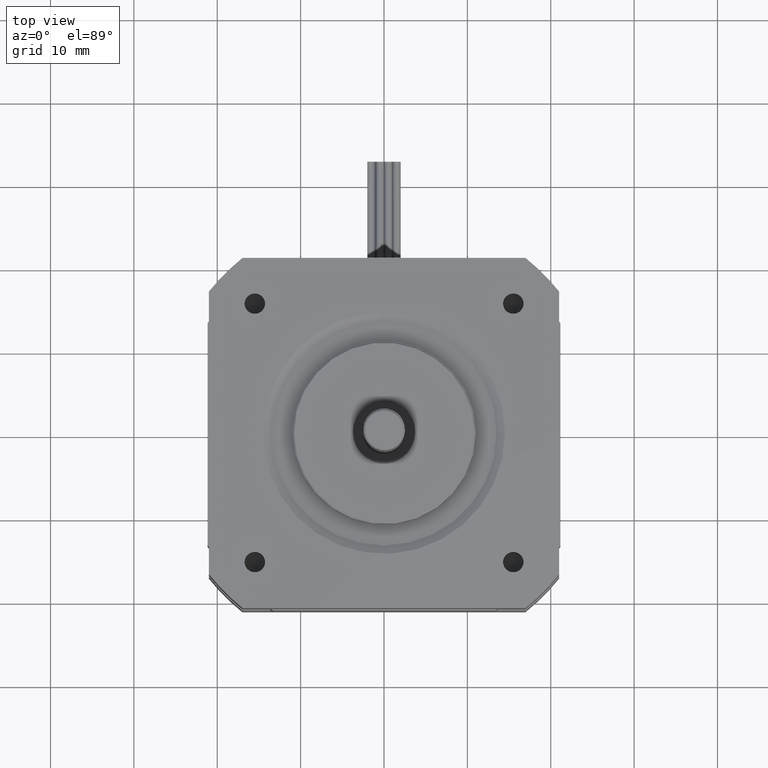
[diagram: clean part render]
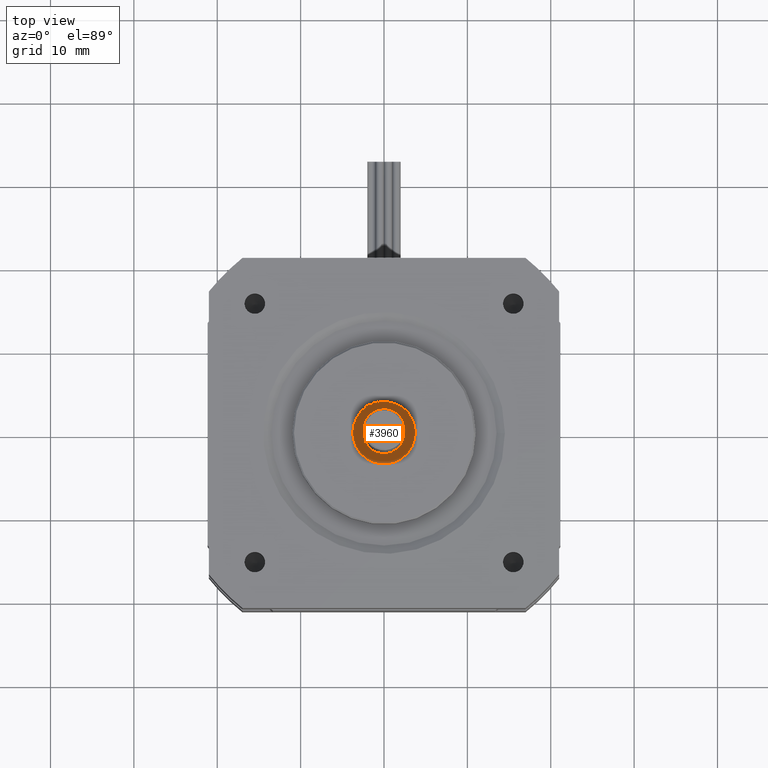
[diagram: same view with one face highlighted and labeled with its STEP entity id]
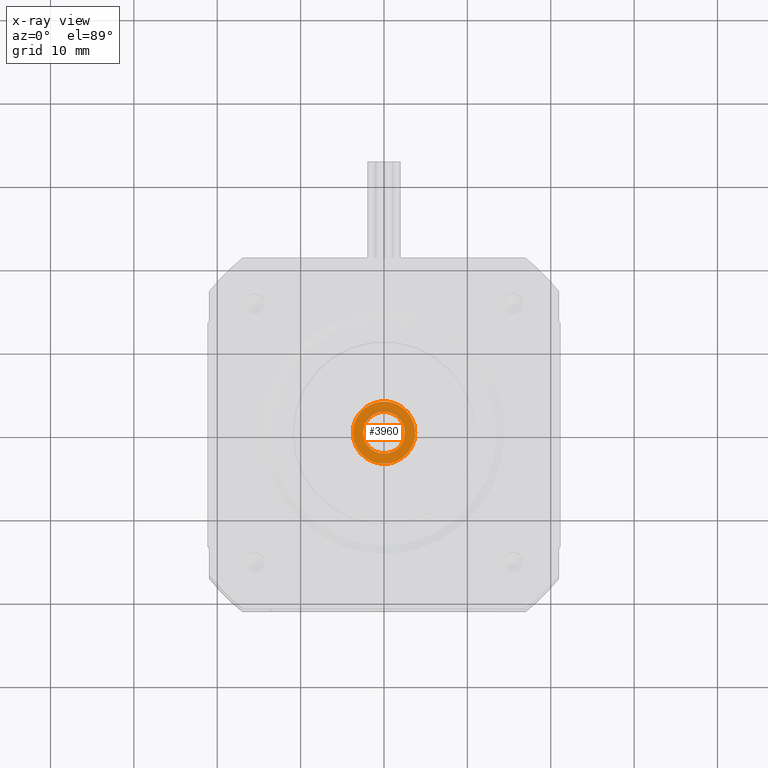
[diagram: x-ray of the same camera — body ghosted, the highlighted face saturated]
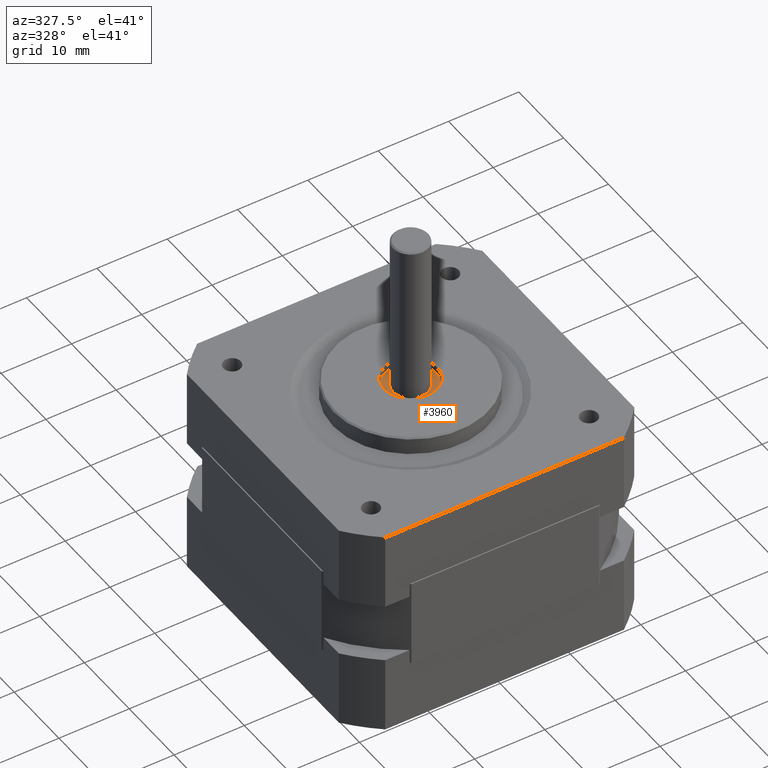
[diagram: same view with one face highlighted and labeled with its STEP entity id]
A machine part, top view. The second image highlights one B-rep face of the part: STEP entity #3960.
The next image is the same camera in x-ray: the body ghosted, the highlighted face saturated — about 8% of this face is hidden behind the body in this view.
A second angle (auxiliary view) of the same face is appended — the face is thin or edge-on in the first view.
In plain terms, the highlighted planar face has unit normal (0, 0, -1).
Its self-contained STEP definition (entity closure, byte-faithful):
#620=PLANE('',#4254);
#752=FACE_BOUND('',#1161,.T.);
#890=FACE_OUTER_BOUND('',#1160,.T.);
#1160=EDGE_LOOP('',(#2727));
#1161=EDGE_LOOP('',(#2728));
#1478=CIRCLE('',#4255,3.75);
#1479=CIRCLE('',#4256,2.5);
#1734=VERTEX_POINT('',#6098);
#1735=VERTEX_POINT('',#6100);
#2134=EDGE_CURVE('',#1734,#1734,#1478,.T.);
#2135=EDGE_CURVE('',#1735,#1735,#1479,.T.);
#2727=ORIENTED_EDGE('',*,*,#2134,.T.);
#2728=ORIENTED_EDGE('',*,*,#2135,.F.);
#3960=ADVANCED_FACE('',(#890,#752),#620,.F.);
#4254=AXIS2_PLACEMENT_3D('',#6097,#4843,#4844);
#4255=AXIS2_PLACEMENT_3D('',#6099,#4845,#4846);
#4256=AXIS2_PLACEMENT_3D('',#6101,#4847,#4848);
#4843=DIRECTION('center_axis',(8.74300631892311E-16,2.59037577520082E-32,
-1.));
#4844=DIRECTION('ref_axis',(-1.,-8.88178419700125E-17,-8.88178419700125E-16));
#4845=DIRECTION('center_axis',(-8.74300631892311E-16,-2.59037577520082E-32,
1.));
#4846=DIRECTION('ref_axis',(1.,7.54604712049907E-17,8.74300631892311E-16));
#4847=DIRECTION('center_axis',(-8.74300631892311E-16,-2.59037577520082E-32,
1.));
#4848=DIRECTION('ref_axis',(1.,7.54604712049907E-17,8.74300631892311E-16));
#6097=CARTESIAN_POINT('Origin',(-1.1021211436781E-14,3.75,6.99999999999989));
#6098=CARTESIAN_POINT('',(3.74999999999999,5.01518652106209E-15,6.99999999999989));
#6099=CARTESIAN_POINT('Origin',(-1.07382346697623E-14,4.73220975404338E-15,
6.99999999999989));
#6100=CARTESIAN_POINT('',(-2.50000000000001,4.2374069760309E-15,6.99999999999989));
#6101=CARTESIAN_POINT('Origin',(-1.07382346697623E-14,4.73220975404338E-15,
6.99999999999989));